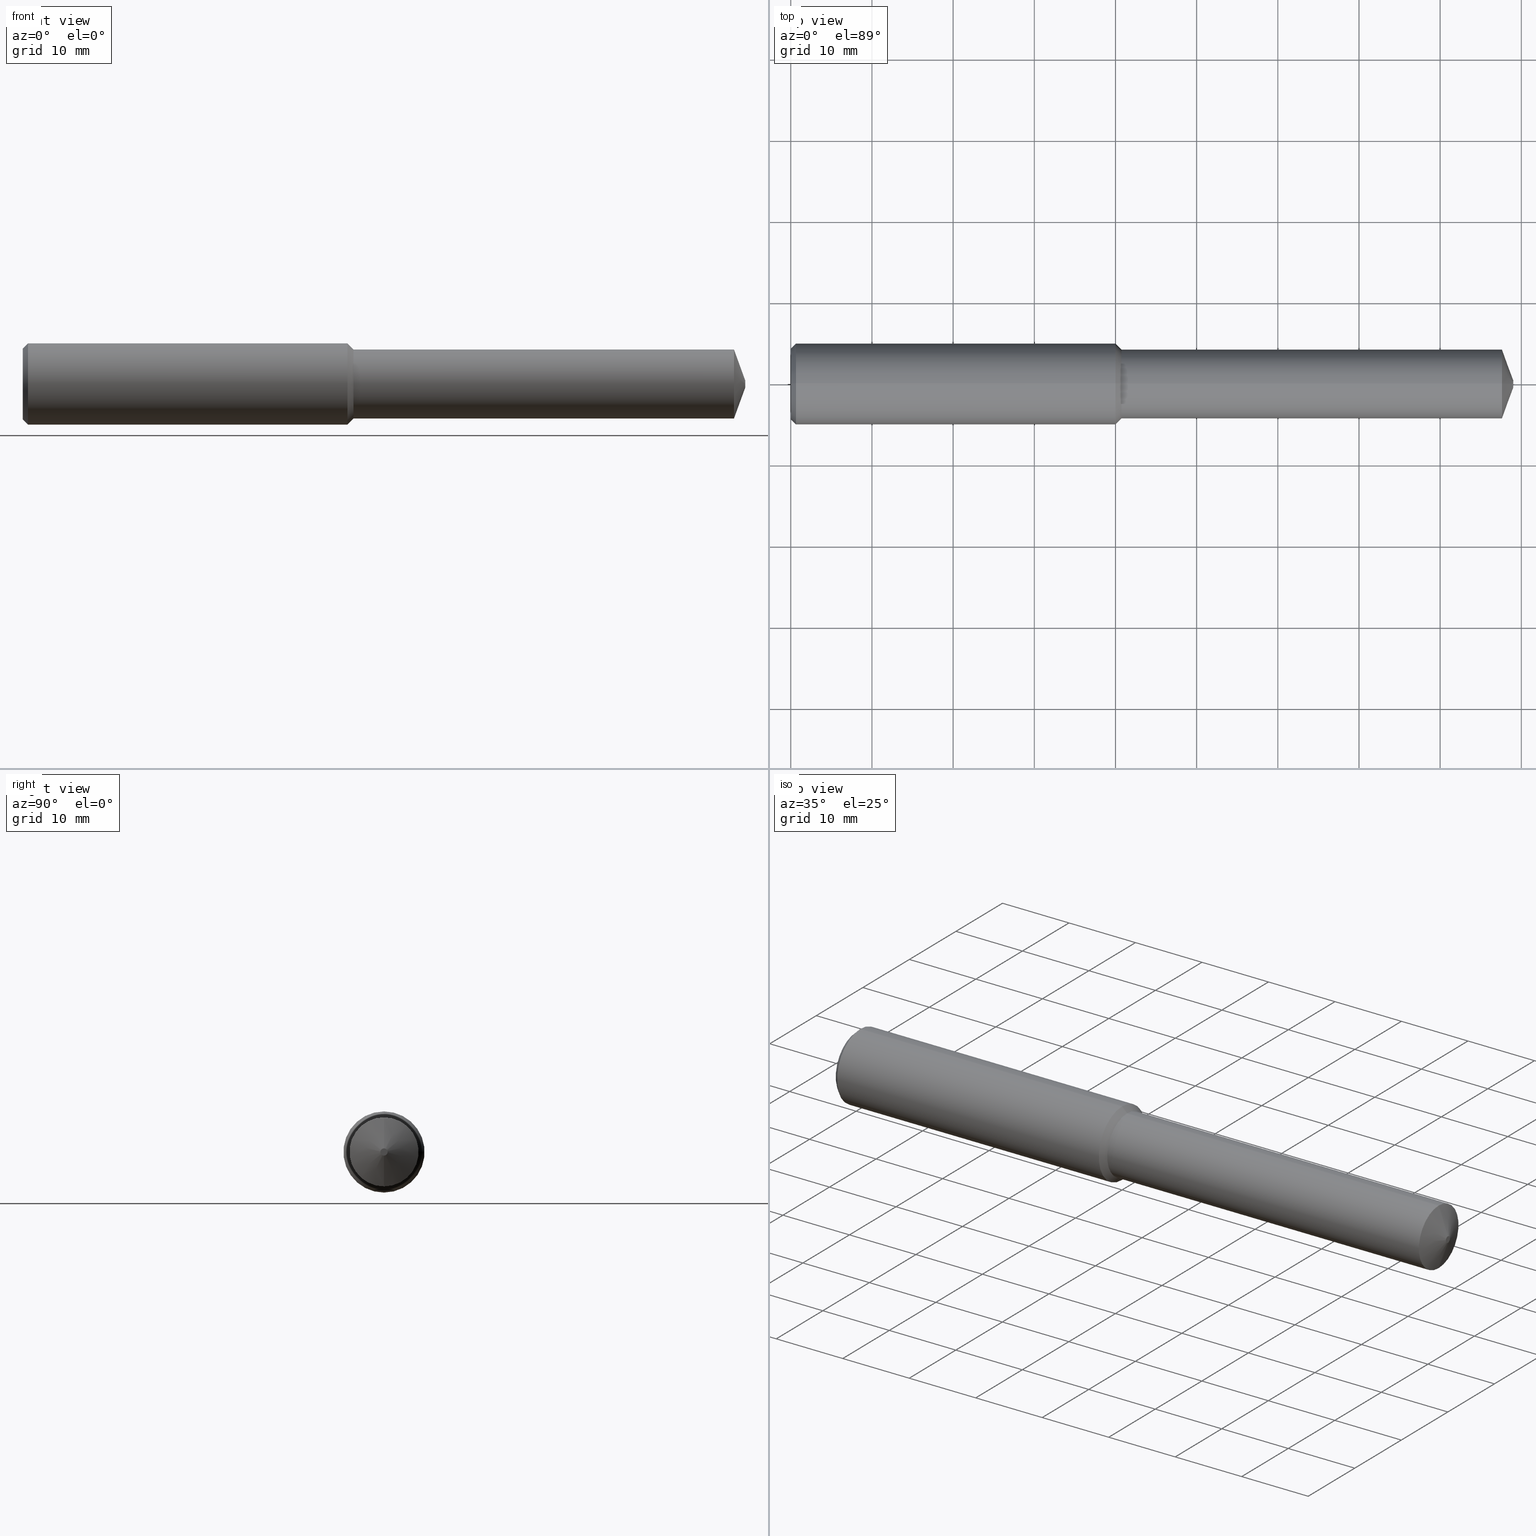
[diagram: canonical four-view strip — front | top / right | iso, engineering-drawing reading convention]
A machine part, canonical four-view strip (front | top / right | iso — engineering-drawing reading convention). The complete STEP part file that produces these views, byte-faithful:
ISO-10303-21;
HEADER;
FILE_DESCRIPTION (( 'STEP AP203' ),
    '1' );
FILE_NAME ('407002-DFX3-335A.STEP',
    '2024-10-02T19:16:40',
    ( '' ),
    ( '' ),
    'SwSTEP 2.0',
    'SolidWorks 2024',
    '' );
FILE_SCHEMA (( 'CONFIG_CONTROL_DESIGN' ));
ENDSEC;

DATA;
#1 = CARTESIAN_POINT ( 'NONE',  ( 3.449341472734085645, 0.000000000000000000, 0.000000000000000000 ) ) ;
#2 = ORGANIZATION ( 'UNSPECIFIED', 'UNSPECIFIED', '' ) ;
#3 = CARTESIAN_POINT ( 'NONE',  ( 0.02500000000000000139, 0.000000000000000000, 0.000000000000000000 ) ) ;
#4 = DIRECTION ( 'NONE',  ( 1.000000000000000000, -0.000000000000000000, -0.000000000000000000 ) ) ;
#5 = ADVANCED_FACE ( 'NONE', ( #375 ), #122, .T. ) ;
#6 = CARTESIAN_POINT ( 'NONE',  ( 1.604153543307087038, 0.000000000000000000, 0.000000000000000000 ) ) ;
#7 = CC_DESIGN_APPROVAL ( #323, ( #352 ) ) ;
#8 = LINE ( 'NONE', #353, #129 ) ;
#9 = DESIGN_CONTEXT ( 'detailed design', #248, 'design' ) ;
#10 = ADVANCED_FACE ( 'NONE', ( #176 ), #125, .T. ) ;
#11 = APPROVAL_ROLE ( '' ) ;
#12 = CARTESIAN_POINT ( 'NONE',  ( 3.449341472734085645, 0.000000000000000000, 0.000000000000000000 ) ) ;
#13 = EDGE_LOOP ( 'NONE', ( #243, #112, #214, #91 ) ) ;
#14 = APPROVAL_DATE_TIME ( #332, #157 ) ;
#15 =( GEOMETRIC_REPRESENTATION_CONTEXT ( 3 ) GLOBAL_UNCERTAINTY_ASSIGNED_CONTEXT ( ( #255 ) ) GLOBAL_UNIT_ASSIGNED_CONTEXT ( ( #257, #229, #370 ) ) REPRESENTATION_CONTEXT ( 'NONE', 'WORKASPACE' ) );
#16 = ORIENTED_EDGE ( 'NONE', *, *, #277, .T. ) ;
#17 = SECURITY_CLASSIFICATION_LEVEL ( 'unclassified' ) ;
#18 = DIRECTION ( 'NONE',  ( 1.000000000000000000, -0.000000000000000000, -0.000000000000000000 ) ) ;
#19 = ORIENTED_EDGE ( 'NONE', *, *, #316, .T. ) ;
#20 = DATE_AND_TIME ( #48, #100 ) ;
#21 = CARTESIAN_POINT ( 'NONE',  ( 0.02500000000000000139, 0.000000000000000000, 0.000000000000000000 ) ) ;
#22 = EDGE_LOOP ( 'NONE', ( #287, #252, #104, #188 ) ) ;
#23 = COORDINATED_UNIVERSAL_TIME_OFFSET ( 8, 0, .BEHIND. ) ;
#24 = CARTESIAN_POINT ( 'NONE',  ( 3.503937007874015741, 0.000000000000000000, 0.01750000000000043535 ) ) ;
#25 = AXIS2_PLACEMENT_3D ( 'NONE', #6, #132, #239 ) ;
#26 = EDGE_CURVE ( 'NONE', #281, #76, #204, .T. ) ;
#27 = VERTEX_POINT ( 'NONE', #201 ) ;
#28 = ORIENTED_EDGE ( 'NONE', *, *, #293, .F. ) ;
#29 = CARTESIAN_POINT ( 'NONE',  ( 1.604153543307087038, 0.000000000000000000, -0.1675000000000002043 ) ) ;
#30 = VERTEX_POINT ( 'NONE', #345 ) ;
#31 = CIRCLE ( 'NONE', #358, 0.1968503937007876070 ) ;
#32 = CC_DESIGN_APPROVAL ( #157, ( #166 ) ) ;
#33 = ADVANCED_FACE ( 'NONE', ( #318 ), #193, .T. ) ;
#34 = DIRECTION ( 'NONE',  ( 1.000000000000000000, -0.000000000000000000, -0.000000000000000000 ) ) ;
#35 = DIRECTION ( 'NONE',  ( -0.7071067811865520136, 8.659560562354877391E-17, -0.7071067811865430208 ) ) ;
#36 = CARTESIAN_POINT ( 'NONE',  ( 3.061616997868404646E-19, 0.1718503937007873628, 0.000000000000000000 ) ) ;
#37 = EDGE_CURVE ( 'NONE', #27, #76, #31, .T. ) ;
#38 = VECTOR ( 'NONE', #256, 39.37007874015748143 ) ;
#39 = CIRCLE ( 'NONE', #123, 0.1718503937007873628 ) ;
#40 = DIMENSIONAL_EXPONENTS ( 1.000000000000000000, 0.000000000000000000, 0.000000000000000000, 0.000000000000000000, 0.000000000000000000, 0.000000000000000000, 0.000000000000000000 ) ;
#41 = CARTESIAN_POINT ( 'NONE',  ( 3.503937007874015741, 0.000000000000000000, 0.000000000000000000 ) ) ;
#42 = PRODUCT ( '407002-DFX3-335A', '407002-DFX3-335A', '', ( #124 ) ) ;
#43 = PLANE ( 'NONE',  #180 ) ;
#44 = VECTOR ( 'NONE', #354, 39.37007874015748143 ) ;
#45 = AXIS2_PLACEMENT_3D ( 'NONE', #159, #335, #355 ) ;
#46 = DIRECTION ( 'NONE',  ( 0.7071067811865474617, 8.659560562354934091E-17, 0.7071067811865475727 ) ) ;
#47 = ADVANCED_BREP_SHAPE_REPRESENTATION ( '407002-DFX3-335A', ( #83, #285 ), #15 ) ;
#48 = CALENDAR_DATE ( 2024, 2, 10 ) ;
#49 = ORIENTED_EDGE ( 'NONE', *, *, #263, .T. ) ;
#50 = EDGE_CURVE ( 'NONE', #259, #30, #65, .T. ) ;
#51 = PERSON_AND_ORGANIZATION ( #119, #2 ) ;
#52 = CONICAL_SURFACE ( 'NONE', #110, 0.01750000000000043535, 1.221730476396033493 ) ;
#53 = VECTOR ( 'NONE', #62, 39.37007874015748854 ) ;
#54 = ORIENTED_EDGE ( 'NONE', *, *, #329, .T. ) ;
#55 = DATE_AND_TIME ( #227, #194 ) ;
#56 = DIRECTION ( 'NONE',  ( 1.000000000000000000, -0.000000000000000000, -0.000000000000000000 ) ) ;
#57 = EDGE_CURVE ( 'NONE', #78, #283, #315, .T. ) ;
#58 = ORIENTED_EDGE ( 'NONE', *, *, #57, .F. ) ;
#59 = DIRECTION ( 'NONE',  ( 0.000000000000000000, 0.000000000000000000, -1.000000000000000000 ) ) ;
#60 = CIRCLE ( 'NONE', #205, 0.1968503937007873850 ) ;
#61 = CARTESIAN_POINT ( 'NONE',  ( 1.574803149606299302, 0.000000000000000000, 0.1968503937007876070 ) ) ;
#62 = DIRECTION ( 'NONE',  ( -0.3420201433256661039, 0.000000000000000000, 0.9396926207859094271 ) ) ;
#63 = DIRECTION ( 'NONE',  ( 1.000000000000000000, -0.000000000000000000, -0.000000000000000000 ) ) ;
#64 = CARTESIAN_POINT ( 'NONE',  ( -0.03808593750000075634, 0.000000000000000000, 0.000000000000000000 ) ) ;
#65 = CIRCLE ( 'NONE', #199, 0.1675000000000004541 ) ;
#66 = DIRECTION ( 'NONE',  ( 1.000000000000000000, -0.000000000000000000, -0.000000000000000000 ) ) ;
#67 = CC_DESIGN_PERSON_AND_ORGANIZATION_ASSIGNMENT ( #221, #142, ( #166 ) ) ;
#68 = DIRECTION ( 'NONE',  ( 0.000000000000000000, 0.000000000000000000, -1.000000000000000000 ) ) ;
#69 = DIRECTION ( 'NONE',  ( 1.000000000000000000, -0.000000000000000000, -0.000000000000000000 ) ) ;
#70 = EDGE_CURVE ( 'NONE', #283, #27, #371, .T. ) ;
#71 = APPROVAL_PERSON_ORGANIZATION ( #309, #157, #313 ) ;
#72 = DIRECTION ( 'NONE',  ( 1.000000000000000000, -0.000000000000000000, -0.000000000000000000 ) ) ;
#73 = ORIENTED_EDGE ( 'NONE', *, *, #37, .T. ) ;
#74 = APPROVAL_DATE_TIME ( #357, #299 ) ;
#75 = DIRECTION ( 'NONE',  ( 1.000000000000000000, -0.000000000000000000, -0.000000000000000000 ) ) ;
#76 = VERTEX_POINT ( 'NONE', #61 ) ;
#77 = PERSON_AND_ORGANIZATION ( #119, #2 ) ;
#78 = VERTEX_POINT ( 'NONE', #319 ) ;
#79 = DATE_AND_TIME ( #253, #156 ) ;
#80 = VECTOR ( 'NONE', #34, 39.37007874015748143 ) ;
#81 = LINE ( 'NONE', #359, #209 ) ;
#82 = ORIENTED_EDGE ( 'NONE', *, *, #113, .F. ) ;
#83 = MANIFOLD_SOLID_BREP ( 'Body', #179 ) ;
#84 = ORIENTED_EDGE ( 'NONE', *, *, #168, .T. ) ;
#85 = COORDINATED_UNIVERSAL_TIME_OFFSET ( 8, 0, .BEHIND. ) ;
#86 = CARTESIAN_POINT ( 'NONE',  ( 3.503937007874015741, 0.000000000000000000, 0.000000000000000000 ) ) ;
#87 = CARTESIAN_POINT ( 'NONE',  ( 3.503937007874015741, 1.132798289211307374E-17, -0.01750000000000043535 ) ) ;
#88 = CC_DESIGN_DATE_AND_TIME_ASSIGNMENT ( #79, #219, ( #166 ) ) ;
#89 = CARTESIAN_POINT ( 'NONE',  ( 1.574803149606299302, 0.000000000000000000, 0.000000000000000000 ) ) ;
#90 = AXIS2_PLACEMENT_3D ( 'NONE', #333, #75, #187 ) ;
#91 = ORIENTED_EDGE ( 'NONE', *, *, #329, .F. ) ;
#92 = ADVANCED_FACE ( 'NONE', ( #93 ), #376, .T. ) ;
#93 = FACE_OUTER_BOUND ( 'NONE', #246, .T. ) ;
#94 = CC_DESIGN_PERSON_AND_ORGANIZATION_ASSIGNMENT ( #77, #189, ( #42 ) ) ;
#95 = ORIENTED_EDGE ( 'NONE', *, *, #339, .T. ) ;
#96 = AXIS2_PLACEMENT_3D ( 'NONE', #21, #337, #245 ) ;
#97 = DIRECTION ( 'NONE',  ( -1.000000000000000000, 0.000000000000000000, 0.000000000000000000 ) ) ;
#98 = FACE_OUTER_BOUND ( 'NONE', #164, .T. ) ;
#99 = CARTESIAN_POINT ( 'NONE',  ( 1.604153543307087038, 2.051283388571819784E-17, 0.1675000000000002043 ) ) ;
#100 = LOCAL_TIME ( 12, 16, 40.00000000000000000, #197 ) ;
#101 = CARTESIAN_POINT ( 'NONE',  ( 3.449341472734085645, 2.051283388571821633E-17, -0.1675000000000003986 ) ) ;
#102 = CARTESIAN_POINT ( 'NONE',  ( 1.604153543307087038, 0.000000000000000000, 0.1675000000000002043 ) ) ;
#103 = CYLINDRICAL_SURFACE ( 'NONE', #45, 0.1675000000000003431 ) ;
#104 = ORIENTED_EDGE ( 'NONE', *, *, #50, .T. ) ;
#105 = AXIS2_PLACEMENT_3D ( 'NONE', #258, #233, #348 ) ;
#106 = PERSON_AND_ORGANIZATION_ROLE ( 'classification_officer' ) ;
#107 = CIRCLE ( 'NONE', #377, 0.1675000000000004541 ) ;
#108 = ORIENTED_EDGE ( 'NONE', *, *, #153, .F. ) ;
#109 = ORIENTED_EDGE ( 'NONE', *, *, #37, .F. ) ;
#110 = AXIS2_PLACEMENT_3D ( 'NONE', #86, #198, #177 ) ;
#111 = AXIS2_PLACEMENT_3D ( 'NONE', #207, #271, #351 ) ;
#112 = ORIENTED_EDGE ( 'NONE', *, *, #241, .T. ) ;
#113 = EDGE_CURVE ( 'NONE', #378, #259, #291, .T. ) ;
#114 = CALENDAR_DATE ( 2024, 2, 10 ) ;
#115 = DIRECTION ( 'NONE',  ( 1.000000000000000000, 0.000000000000000000, 0.000000000000000000 ) ) ;
#116 = CARTESIAN_POINT ( 'NONE',  ( 1.604153543307087038, 0.000000000000000000, 0.000000000000000000 ) ) ;
#117 =( LENGTH_UNIT ( ) NAMED_UNIT ( * ) SI_UNIT ( $, .METRE. ) );
#118 = ORIENTED_EDGE ( 'NONE', *, *, #316, .F. ) ;
#119 = PERSON ( 'UNSPECIFIED', 'UNSPECIFIED', 'UNSPECIFIED', ('UNSPECIFIED'), ('UNSPECIFIED'), ('UNSPECIFIED') ) ;
#120 = CARTESIAN_POINT ( 'NONE',  ( 0.000000000000000000, 0.000000000000000000, 0.000000000000000000 ) ) ;
#121 = ADVANCED_FACE ( 'NONE', ( #167 ), #52, .T. ) ;
#122 = CYLINDRICAL_SURFACE ( 'NONE', #224, 0.1968503937007875237 ) ;
#123 = AXIS2_PLACEMENT_3D ( 'NONE', #178, #4, #131 ) ;
#124 = MECHANICAL_CONTEXT ( 'NONE', #346, 'mechanical' ) ;
#125 = CYLINDRICAL_SURFACE ( 'NONE', #105, 0.1675000000000003431 ) ;
#126 = ORIENTED_EDGE ( 'NONE', *, *, #153, .T. ) ;
#127 = EDGE_CURVE ( 'NONE', #264, #76, #296, .T. ) ;
#128 = DIRECTION ( 'NONE',  ( 0.000000000000000000, 0.000000000000000000, -1.000000000000000000 ) ) ;
#129 = VECTOR ( 'NONE', #328, 39.37007874015748143 ) ;
#130 = FACE_OUTER_BOUND ( 'NONE', #306, .T. ) ;
#131 = DIRECTION ( 'NONE',  ( 0.000000000000000000, 0.000000000000000000, -1.000000000000000000 ) ) ;
#132 = DIRECTION ( 'NONE',  ( -1.000000000000000000, 0.000000000000000000, 0.000000000000000000 ) ) ;
#133 = CONICAL_SURFACE ( 'NONE', #96, 0.1968503937007873850, 0.7853981633974483900 ) ;
#134 = FACE_OUTER_BOUND ( 'NONE', #321, .T. ) ;
#135 = EDGE_CURVE ( 'NONE', #361, #264, #320, .T. ) ;
#136 = COORDINATED_UNIVERSAL_TIME_OFFSET ( 8, 0, .BEHIND. ) ;
#137 = DIRECTION ( 'NONE',  ( 0.000000000000000000, 0.000000000000000000, -1.000000000000000000 ) ) ;
#138 = ORIENTED_EDGE ( 'NONE', *, *, #70, .T. ) ;
#139 = ORIENTED_EDGE ( 'NONE', *, *, #339, .F. ) ;
#140 = DIRECTION ( 'NONE',  ( 1.000000000000000000, -0.000000000000000000, -0.000000000000000000 ) ) ;
#141 = ORIENTED_EDGE ( 'NONE', *, *, #70, .F. ) ;
#142 = PERSON_AND_ORGANIZATION_ROLE ( 'creator' ) ;
#143 = ORIENTED_EDGE ( 'NONE', *, *, #127, .F. ) ;
#144 = CARTESIAN_POINT ( 'NONE',  ( 3.503937007874015741, 0.000000000000000000, 0.01750000000000043535 ) ) ;
#145 = EDGE_LOOP ( 'NONE', ( #28, #126, #356, #160 ) ) ;
#146 = ADVANCED_FACE ( 'NONE', ( #130 ), #294, .T. ) ;
#147 = EDGE_LOOP ( 'NONE', ( #191, #185, #54, #118 ) ) ;
#148 = ORIENTED_EDGE ( 'NONE', *, *, #288, .F. ) ;
#149 = LOCAL_TIME ( 12, 16, 40.00000000000000000, #136 ) ;
#150 = DIRECTION ( 'NONE',  ( -0.3420201433256661039, 1.150791560227851502E-16, -0.9396926207859094271 ) ) ;
#151 = VECTOR ( 'NONE', #265, 39.37007874015748143 ) ;
#152 = DIRECTION ( 'NONE',  ( 1.000000000000000000, 0.000000000000000000, -0.000000000000000000 ) ) ;
#153 = EDGE_CURVE ( 'NONE', #341, #78, #307, .T. ) ;
#154 = DIRECTION ( 'NONE',  ( -0.000000000000000000, 0.000000000000000000, -1.000000000000000000 ) ) ;
#155 = DIRECTION ( 'NONE',  ( 1.000000000000000000, -0.000000000000000000, -0.000000000000000000 ) ) ;
#156 = LOCAL_TIME ( 12, 16, 40.00000000000000000, #342 ) ;
#157 = APPROVAL ( #276, 'UNSPECIFIED' ) ;
#158 = CALENDAR_DATE ( 2024, 2, 10 ) ;
#159 = CARTESIAN_POINT ( 'NONE',  ( -0.03808593750000075634, 0.000000000000000000, 0.000000000000000000 ) ) ;
#160 = ORIENTED_EDGE ( 'NONE', *, *, #175, .F. ) ;
#161 = AXIS2_PLACEMENT_3D ( 'NONE', #116, #202, #372 ) ;
#162 = AXIS2_PLACEMENT_3D ( 'NONE', #226, #56, #213 ) ;
#163 = ADVANCED_FACE ( 'NONE', ( #268 ), #43, .T. ) ;
#164 = EDGE_LOOP ( 'NONE', ( #311, #148, #336, #16 ) ) ;
#165 = APPROVAL_STATUS ( 'not_yet_approved' ) ;
#166 = PRODUCT_DEFINITION ( 'UNKNOWN', '', #352, #9 ) ;
#167 = FACE_OUTER_BOUND ( 'NONE', #22, .T. ) ;
#168 = EDGE_CURVE ( 'NONE', #361, #27, #211, .T. ) ;
#169 = DIRECTION ( 'NONE',  ( 0.000000000000000000, 0.000000000000000000, 1.000000000000000000 ) ) ;
#170 = CARTESIAN_POINT ( 'NONE',  ( 0.02500000000000000139, 0.000000000000000000, -0.1968503937007873850 ) ) ;
#171 = APPLICATION_PROTOCOL_DEFINITION ( 'international standard', 'config_control_design', 1994, #346 ) ;
#172 = ORIENTED_EDGE ( 'NONE', *, *, #135, .F. ) ;
#173 = DIRECTION ( 'NONE',  ( 0.000000000000000000, 0.000000000000000000, 1.000000000000000000 ) ) ;
#174 = LOCAL_TIME ( 12, 16, 40.00000000000000000, #23 ) ;
#175 = EDGE_CURVE ( 'NONE', #281, #283, #60, .T. ) ;
#176 = FACE_OUTER_BOUND ( 'NONE', #147, .T. ) ;
#177 = DIRECTION ( 'NONE',  ( 0.000000000000000000, 0.000000000000000000, 1.000000000000000000 ) ) ;
#178 = CARTESIAN_POINT ( 'NONE',  ( 0.000000000000000000, 0.000000000000000000, 0.000000000000000000 ) ) ;
#179 = CLOSED_SHELL ( 'NONE', ( #326, #5, #33, #302, #121, #146, #163, #92, #10, #192, #267, #228 ) ) ;
#180 = AXIS2_PLACEMENT_3D ( 'NONE', #41, #152, #154 ) ;
#181 = CARTESIAN_POINT ( 'NONE',  ( 1.604153543307087038, 0.000000000000000000, 0.000000000000000000 ) ) ;
#182 = DIRECTION ( 'NONE',  ( 0.000000000000000000, 0.000000000000000000, -1.000000000000000000 ) ) ;
#183 = CIRCLE ( 'NONE', #90, 0.1968503937007873850 ) ;
#184 = DIRECTION ( 'NONE',  ( 0.000000000000000000, 0.000000000000000000, -1.000000000000000000 ) ) ;
#185 = ORIENTED_EDGE ( 'NONE', *, *, #288, .T. ) ;
#186 = APPROVAL_ROLE ( '' ) ;
#187 = DIRECTION ( 'NONE',  ( 0.000000000000000000, 0.000000000000000000, -1.000000000000000000 ) ) ;
#188 = ORIENTED_EDGE ( 'NONE', *, *, #364, .F. ) ;
#189 = PERSON_AND_ORGANIZATION_ROLE ( 'design_owner' ) ;
#190 = CARTESIAN_POINT ( 'NONE',  ( 0.02500000000000000139, 2.410722045565656686E-17, 0.1968503937007873850 ) ) ;
#191 = ORIENTED_EDGE ( 'NONE', *, *, #241, .F. ) ;
#192 = ADVANCED_FACE ( 'NONE', ( #98 ), #360, .T. ) ;
#193 = CONICAL_SURFACE ( 'NONE', #161, 0.1675000000000002043, 0.7853981633974419507 ) ;
#194 = LOCAL_TIME ( 12, 16, 40.00000000000000000, #85 ) ;
#195 = ORIENTED_EDGE ( 'NONE', *, *, #293, .T. ) ;
#196 = ORIENTED_EDGE ( 'NONE', *, *, #26, .F. ) ;
#197 = COORDINATED_UNIVERSAL_TIME_OFFSET ( 8, 0, .BEHIND. ) ;
#198 = DIRECTION ( 'NONE',  ( -1.000000000000000000, 0.000000000000000000, 0.000000000000000000 ) ) ;
#199 = AXIS2_PLACEMENT_3D ( 'NONE', #1, #234, #59 ) ;
#200 = CIRCLE ( 'NONE', #338, 0.01750000000000043535 ) ;
#201 = CARTESIAN_POINT ( 'NONE',  ( 1.574803149606299302, 2.410722045565658535E-17, -0.1968503937007876070 ) ) ;
#202 = DIRECTION ( 'NONE',  ( -1.000000000000000000, 0.000000000000000000, 0.000000000000000000 ) ) ;
#203 = CARTESIAN_POINT ( 'NONE',  ( 3.503937007874015741, 0.000000000000000000, 0.000000000000000000 ) ) ;
#204 = LINE ( 'NONE', #314, #151 ) ;
#205 = AXIS2_PLACEMENT_3D ( 'NONE', #3, #238, #128 ) ;
#206 = DIRECTION ( 'NONE',  ( 0.000000000000000000, 0.000000000000000000, -1.000000000000000000 ) ) ;
#207 = CARTESIAN_POINT ( 'NONE',  ( 0.02500000000000000139, 0.000000000000000000, 0.000000000000000000 ) ) ;
#208 = AXIS2_PLACEMENT_3D ( 'NONE', #181, #155, #298 ) ;
#209 = VECTOR ( 'NONE', #310, 39.37007874015748143 ) ;
#210 = CARTESIAN_POINT ( 'NONE',  ( 0.000000000000000000, 0.000000000000000000, 0.000000000000000000 ) ) ;
#211 = LINE ( 'NONE', #270, #240 ) ;
#212 = PRODUCT_RELATED_PRODUCT_CATEGORY ( 'detail', '', ( #42 ) ) ;
#213 = DIRECTION ( 'NONE',  ( 0.000000000000000000, 0.000000000000000000, -1.000000000000000000 ) ) ;
#214 = ORIENTED_EDGE ( 'NONE', *, *, #50, .F. ) ;
#215 = CC_DESIGN_APPROVAL ( #299, ( #284 ) ) ;
#216 = SHAPE_DEFINITION_REPRESENTATION ( #275, #47 ) ;
#217 = CARTESIAN_POINT ( 'NONE',  ( 1.574803149606299302, 0.000000000000000000, 0.000000000000000000 ) ) ;
#218 = ORIENTED_EDGE ( 'NONE', *, *, #237, .T. ) ;
#219 = DATE_TIME_ROLE ( 'creation_date' ) ;
#220 = DIRECTION ( 'NONE',  ( 0.000000000000000000, 0.000000000000000000, -1.000000000000000000 ) ) ;
#221 = PERSON_AND_ORGANIZATION ( #119, #2 ) ;
#222 = FACE_OUTER_BOUND ( 'NONE', #289, .T. ) ;
#223 = EDGE_LOOP ( 'NONE', ( #218, #312 ) ) ;
#224 = AXIS2_PLACEMENT_3D ( 'NONE', #64, #66, #235 ) ;
#225 = CC_DESIGN_SECURITY_CLASSIFICATION ( #284, ( #352 ) ) ;
#226 = CARTESIAN_POINT ( 'NONE',  ( 1.604153543307087038, 0.000000000000000000, 0.000000000000000000 ) ) ;
#227 = CALENDAR_DATE ( 2024, 2, 10 ) ;
#228 = ADVANCED_FACE ( 'NONE', ( #269 ), #247, .T. ) ;
#229 =( NAMED_UNIT ( * ) PLANE_ANGLE_UNIT ( ) SI_UNIT ( $, .RADIAN. ) );
#230 = DIRECTION ( 'NONE',  ( -1.000000000000000000, 0.000000000000000000, 0.000000000000000000 ) ) ;
#231 = EDGE_LOOP ( 'NONE', ( #172, #84, #73, #143 ) ) ;
#232 = VECTOR ( 'NONE', #150, 39.37007874015748854 ) ;
#233 = DIRECTION ( 'NONE',  ( 1.000000000000000000, -0.000000000000000000, -0.000000000000000000 ) ) ;
#234 = DIRECTION ( 'NONE',  ( 1.000000000000000000, -0.000000000000000000, -0.000000000000000000 ) ) ;
#235 = DIRECTION ( 'NONE',  ( 0.000000000000000000, 0.000000000000000000, -1.000000000000000000 ) ) ;
#236 = CARTESIAN_POINT ( 'NONE',  ( 3.503937007874015741, 0.000000000000000000, 0.000000000000000000 ) ) ;
#237 = EDGE_CURVE ( 'NONE', #344, #378, #200, .T. ) ;
#238 = DIRECTION ( 'NONE',  ( 1.000000000000000000, -0.000000000000000000, -0.000000000000000000 ) ) ;
#239 = DIRECTION ( 'NONE',  ( 0.000000000000000000, 0.000000000000000000, 1.000000000000000000 ) ) ;
#240 = VECTOR ( 'NONE', #35, 39.37007874015748143 ) ;
#241 = EDGE_CURVE ( 'NONE', #264, #30, #8, .T. ) ;
#242 = LINE ( 'NONE', #280, #301 ) ;
#243 = ORIENTED_EDGE ( 'NONE', *, *, #135, .T. ) ;
#244 = DATE_TIME_ROLE ( 'classification_date' ) ;
#245 = DIRECTION ( 'NONE',  ( 0.000000000000000000, 0.000000000000000000, -1.000000000000000000 ) ) ;
#246 = EDGE_LOOP ( 'NONE', ( #82, #367, #331, #19 ) ) ;
#247 = CONICAL_SURFACE ( 'NONE', #111, 0.1968503937007873850, 0.7853981633974483900 ) ;
#248 = APPLICATION_CONTEXT ( 'configuration controlled 3d designs of mechanical parts and assemblies' ) ;
#249 = PERSON_AND_ORGANIZATION_ROLE ( 'creator' ) ;
#250 = EDGE_LOOP ( 'NONE', ( #95, #365, #109, #141 ) ) ;
#251 = APPLICATION_PROTOCOL_DEFINITION ( 'international standard', 'config_control_design', 1994, #248 ) ;
#252 = ORIENTED_EDGE ( 'NONE', *, *, #113, .T. ) ;
#253 = CALENDAR_DATE ( 2024, 2, 10 ) ;
#254 = CIRCLE ( 'NONE', #349, 0.1968503937007876070 ) ;
#255 = UNCERTAINTY_MEASURE_WITH_UNIT (LENGTH_MEASURE( 1.000000000000000082E-05 ), #257, 'distance_accuracy_value', 'NONE');
#256 = DIRECTION ( 'NONE',  ( 0.7071067811865474617, 0.000000000000000000, -0.7071067811865475727 ) ) ;
#257 =( CONVERSION_BASED_UNIT ( 'INCH', #374 ) LENGTH_UNIT ( ) NAMED_UNIT ( #40 ) );
#258 = CARTESIAN_POINT ( 'NONE',  ( -0.03808593750000075634, 0.000000000000000000, 0.000000000000000000 ) ) ;
#259 = VERTEX_POINT ( 'NONE', #101 ) ;
#260 = CC_DESIGN_PERSON_AND_ORGANIZATION_ASSIGNMENT ( #340, #369, ( #352 ) ) ;
#261 = APPROVAL_PERSON_ORGANIZATION ( #366, #323, #186 ) ;
#262 = CARTESIAN_POINT ( 'NONE',  ( 0.000000000000000000, 2.257641195672236334E-17, 0.1718503937007873628 ) ) ;
#263 = EDGE_CURVE ( 'NONE', #78, #341, #39, .T. ) ;
#264 = VERTEX_POINT ( 'NONE', #99 ) ;
#265 = DIRECTION ( 'NONE',  ( 1.000000000000000000, -0.000000000000000000, -0.000000000000000000 ) ) ;
#266 = DIRECTION ( 'NONE',  ( 0.000000000000000000, 0.000000000000000000, 1.000000000000000000 ) ) ;
#267 = ADVANCED_FACE ( 'NONE', ( #134 ), #325, .T. ) ;
#268 = FACE_OUTER_BOUND ( 'NONE', #223, .T. ) ;
#269 = FACE_OUTER_BOUND ( 'NONE', #145, .T. ) ;
#270 = CARTESIAN_POINT ( 'NONE',  ( 1.604153543307087038, 2.051283388571819167E-17, -0.1675000000000002043 ) ) ;
#271 = DIRECTION ( 'NONE',  ( 1.000000000000000000, -0.000000000000000000, -0.000000000000000000 ) ) ;
#272 = EDGE_CURVE ( 'NONE', #378, #344, #295, .T. ) ;
#273 = AXIS2_PLACEMENT_3D ( 'NONE', #203, #230, #173 ) ;
#274 = FACE_OUTER_BOUND ( 'NONE', #13, .T. ) ;
#275 = PRODUCT_DEFINITION_SHAPE ( 'NONE', 'NONE',  #166 ) ;
#276 = APPROVAL_STATUS ( 'not_yet_approved' ) ;
#277 = EDGE_CURVE ( 'NONE', #76, #27, #254, .T. ) ;
#278 = AXIS2_PLACEMENT_3D ( 'NONE', #210, #322, #206 ) ;
#279 = PERSON_AND_ORGANIZATION ( #119, #2 ) ;
#280 = CARTESIAN_POINT ( 'NONE',  ( 0.02500000000000000139, 2.410722045565655454E-17, 0.1968503937007873850 ) ) ;
#281 = VERTEX_POINT ( 'NONE', #190 ) ;
#282 = ORIENTED_EDGE ( 'NONE', *, *, #175, .T. ) ;
#283 = VERTEX_POINT ( 'NONE', #305 ) ;
#284 = SECURITY_CLASSIFICATION ( '', '', #17 ) ;
#285 = AXIS2_PLACEMENT_3D ( 'NONE', #120, #169, #115 ) ;
#286 = ORIENTED_EDGE ( 'NONE', *, *, #263, .F. ) ;
#287 = ORIENTED_EDGE ( 'NONE', *, *, #272, .F. ) ;
#288 = EDGE_CURVE ( 'NONE', #264, #361, #330, .T. ) ;
#289 = EDGE_LOOP ( 'NONE', ( #49, #195, #139, #58 ) ) ;
#290 = AXIS2_PLACEMENT_3D ( 'NONE', #300, #72, #220 ) ;
#291 = LINE ( 'NONE', #343, #232 ) ;
#292 = DIRECTION ( 'NONE',  ( 0.000000000000000000, 0.000000000000000000, -1.000000000000000000 ) ) ;
#293 = EDGE_CURVE ( 'NONE', #341, #281, #242, .T. ) ;
#294 = PLANE ( 'NONE',  #368 ) ;
#295 = CIRCLE ( 'NONE', #290, 0.01750000000000043535 ) ;
#296 = LINE ( 'NONE', #102, #44 ) ;
#297 = CC_DESIGN_PERSON_AND_ORGANIZATION_ASSIGNMENT ( #279, #249, ( #352 ) ) ;
#298 = DIRECTION ( 'NONE',  ( 0.000000000000000000, 0.000000000000000000, -1.000000000000000000 ) ) ;
#299 = APPROVAL ( #303, 'UNSPECIFIED' ) ;
#300 = CARTESIAN_POINT ( 'NONE',  ( 3.503937007874015741, 0.000000000000000000, 0.000000000000000000 ) ) ;
#301 = VECTOR ( 'NONE', #46, 39.37007874015748143 ) ;
#302 = ADVANCED_FACE ( 'NONE', ( #274 ), #103, .T. ) ;
#303 = APPROVAL_STATUS ( 'not_yet_approved' ) ;
#304 = PERSON_AND_ORGANIZATION ( #119, #2 ) ;
#305 = CARTESIAN_POINT ( 'NONE',  ( 0.02500000000000000139, 0.000000000000000000, -0.1968503937007873850 ) ) ;
#306 = EDGE_LOOP ( 'NONE', ( #286, #108 ) ) ;
#307 = CIRCLE ( 'NONE', #278, 0.1718503937007873628 ) ;
#308 = APPROVAL_PERSON_ORGANIZATION ( #51, #299, #11 ) ;
#309 = PERSON_AND_ORGANIZATION ( #119, #2 ) ;
#310 = DIRECTION ( 'NONE',  ( 1.000000000000000000, -0.000000000000000000, -0.000000000000000000 ) ) ;
#311 = ORIENTED_EDGE ( 'NONE', *, *, #168, .F. ) ;
#312 = ORIENTED_EDGE ( 'NONE', *, *, #272, .T. ) ;
#313 = APPROVAL_ROLE ( '' ) ;
#314 = CARTESIAN_POINT ( 'NONE',  ( -0.03808593750000075634, 2.410722045565657611E-17, 0.1968503937007875237 ) ) ;
#315 = LINE ( 'NONE', #170, #38 ) ;
#316 = EDGE_CURVE ( 'NONE', #30, #259, #107, .T. ) ;
#317 = LINE ( 'NONE', #24, #53 ) ;
#318 = FACE_OUTER_BOUND ( 'NONE', #231, .T. ) ;
#319 = CARTESIAN_POINT ( 'NONE',  ( 0.000000000000000000, 0.000000000000000000, -0.1718503937007873628 ) ) ;
#320 = CIRCLE ( 'NONE', #208, 0.1675000000000002043 ) ;
#321 = EDGE_LOOP ( 'NONE', ( #196, #282, #138, #362 ) ) ;
#322 = DIRECTION ( 'NONE',  ( 1.000000000000000000, -0.000000000000000000, -0.000000000000000000 ) ) ;
#323 = APPROVAL ( #165, 'UNSPECIFIED' ) ;
#324 = AXIS2_PLACEMENT_3D ( 'NONE', #327, #69, #182 ) ;
#325 = CYLINDRICAL_SURFACE ( 'NONE', #324, 0.1968503937007875237 ) ;
#326 = ADVANCED_FACE ( 'NONE', ( #222 ), #133, .T. ) ;
#327 = CARTESIAN_POINT ( 'NONE',  ( -0.03808593750000075634, 0.000000000000000000, 0.000000000000000000 ) ) ;
#328 = DIRECTION ( 'NONE',  ( 1.000000000000000000, -0.000000000000000000, -0.000000000000000000 ) ) ;
#329 = EDGE_CURVE ( 'NONE', #361, #259, #81, .T. ) ;
#330 = CIRCLE ( 'NONE', #162, 0.1675000000000002043 ) ;
#331 = ORIENTED_EDGE ( 'NONE', *, *, #364, .T. ) ;
#332 = DATE_AND_TIME ( #158, #174 ) ;
#333 = CARTESIAN_POINT ( 'NONE',  ( 0.02500000000000000139, 0.000000000000000000, 0.000000000000000000 ) ) ;
#334 = APPROVAL_DATE_TIME ( #55, #323 ) ;
#335 = DIRECTION ( 'NONE',  ( 1.000000000000000000, -0.000000000000000000, -0.000000000000000000 ) ) ;
#336 = ORIENTED_EDGE ( 'NONE', *, *, #127, .T. ) ;
#337 = DIRECTION ( 'NONE',  ( 1.000000000000000000, -0.000000000000000000, -0.000000000000000000 ) ) ;
#338 = AXIS2_PLACEMENT_3D ( 'NONE', #236, #350, #68 ) ;
#339 = EDGE_CURVE ( 'NONE', #283, #281, #183, .T. ) ;
#340 = PERSON_AND_ORGANIZATION ( #119, #2 ) ;
#341 = VERTEX_POINT ( 'NONE', #262 ) ;
#342 = COORDINATED_UNIVERSAL_TIME_OFFSET ( 8, 0, .BEHIND. ) ;
#343 = CARTESIAN_POINT ( 'NONE',  ( 3.503937007874015741, 2.143131898507921145E-18, -0.01750000000000043535 ) ) ;
#344 = VERTEX_POINT ( 'NONE', #144 ) ;
#345 = CARTESIAN_POINT ( 'NONE',  ( 3.449341472734085645, 0.000000000000000000, 0.1675000000000003986 ) ) ;
#346 = APPLICATION_CONTEXT ( 'configuration controlled 3d designs of mechanical parts and assemblies' ) ;
#347 = CARTESIAN_POINT ( 'NONE',  ( -0.03808593750000075634, 0.000000000000000000, -0.1968503937007875237 ) ) ;
#348 = DIRECTION ( 'NONE',  ( 0.000000000000000000, 0.000000000000000000, -1.000000000000000000 ) ) ;
#349 = AXIS2_PLACEMENT_3D ( 'NONE', #217, #140, #184 ) ;
#350 = DIRECTION ( 'NONE',  ( 1.000000000000000000, -0.000000000000000000, -0.000000000000000000 ) ) ;
#351 = DIRECTION ( 'NONE',  ( 0.000000000000000000, 0.000000000000000000, -1.000000000000000000 ) ) ;
#352 = PRODUCT_DEFINITION_FORMATION_WITH_SPECIFIED_SOURCE ( 'ANY', '', #42, .NOT_KNOWN. ) ;
#353 = CARTESIAN_POINT ( 'NONE',  ( -0.03808593750000075634, 2.051283388571820708E-17, 0.1675000000000003431 ) ) ;
#354 = DIRECTION ( 'NONE',  ( -0.7071067811865520136, 0.000000000000000000, 0.7071067811865430208 ) ) ;
#355 = DIRECTION ( 'NONE',  ( 0.000000000000000000, 0.000000000000000000, -1.000000000000000000 ) ) ;
#356 = ORIENTED_EDGE ( 'NONE', *, *, #57, .T. ) ;
#357 = DATE_AND_TIME ( #114, #149 ) ;
#358 = AXIS2_PLACEMENT_3D ( 'NONE', #89, #63, #292 ) ;
#359 = CARTESIAN_POINT ( 'NONE',  ( -0.03808593750000075634, 0.000000000000000000, -0.1675000000000003431 ) ) ;
#360 = CONICAL_SURFACE ( 'NONE', #25, 0.1675000000000002043, 0.7853981633974419507 ) ;
#361 = VERTEX_POINT ( 'NONE', #29 ) ;
#362 = ORIENTED_EDGE ( 'NONE', *, *, #277, .F. ) ;
#363 = CC_DESIGN_DATE_AND_TIME_ASSIGNMENT ( #20, #244, ( #284 ) ) ;
#364 = EDGE_CURVE ( 'NONE', #344, #30, #317, .T. ) ;
#365 = ORIENTED_EDGE ( 'NONE', *, *, #26, .T. ) ;
#366 = PERSON_AND_ORGANIZATION ( #119, #2 ) ;
#367 = ORIENTED_EDGE ( 'NONE', *, *, #237, .F. ) ;
#368 = AXIS2_PLACEMENT_3D ( 'NONE', #36, #97, #266 ) ;
#369 = PERSON_AND_ORGANIZATION_ROLE ( 'design_supplier' ) ;
#370 =( NAMED_UNIT ( * ) SI_UNIT ( $, .STERADIAN. ) SOLID_ANGLE_UNIT ( ) );
#371 = LINE ( 'NONE', #347, #80 ) ;
#372 = DIRECTION ( 'NONE',  ( 0.000000000000000000, 0.000000000000000000, 1.000000000000000000 ) ) ;
#373 = CC_DESIGN_PERSON_AND_ORGANIZATION_ASSIGNMENT ( #304, #106, ( #284 ) ) ;
#374 = LENGTH_MEASURE_WITH_UNIT ( LENGTH_MEASURE( 0.02539999999999999897 ), #117 );
#375 = FACE_OUTER_BOUND ( 'NONE', #250, .T. ) ;
#376 = CONICAL_SURFACE ( 'NONE', #273, 0.01750000000000043535, 1.221730476396033493 ) ;
#377 = AXIS2_PLACEMENT_3D ( 'NONE', #12, #18, #137 ) ;
#378 = VERTEX_POINT ( 'NONE', #87 ) ;
ENDSEC;
END-ISO-10303-21;
